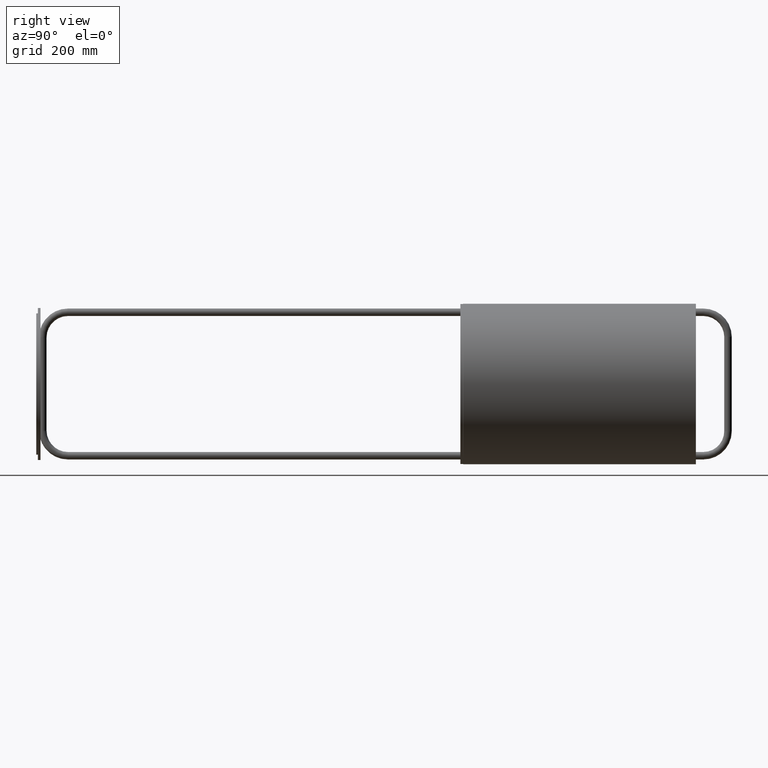
[diagram: clean part render]
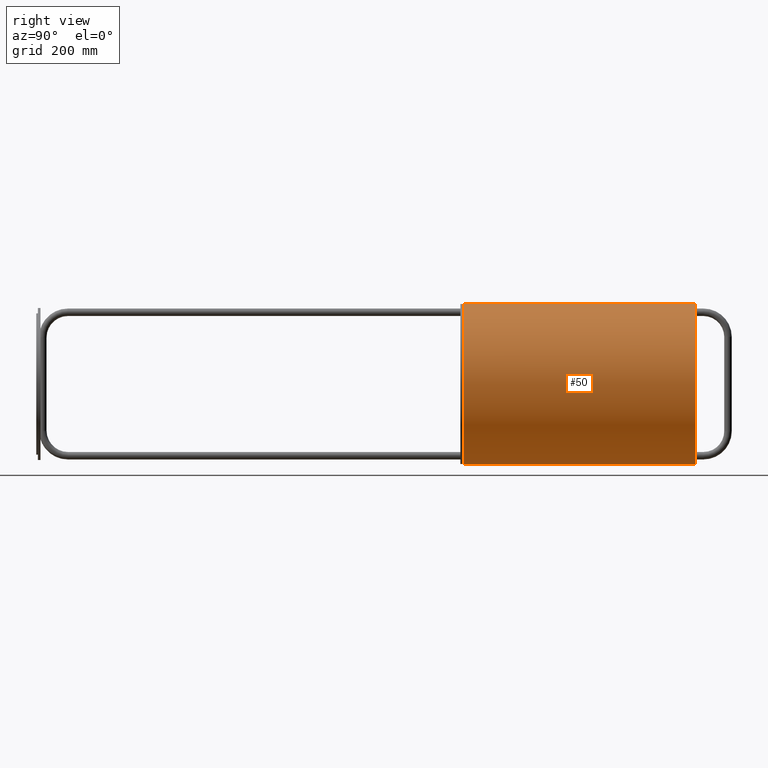
[diagram: same view with one face highlighted and labeled with its STEP entity id]
A machine part, right view. The second image highlights one B-rep face of the part: STEP entity #50.
In plain terms, the highlighted cylindrical surface (partial cylindrical patch) has radius 150 mm, axis along (-0, -1, -0).
Its self-contained STEP definition (entity closure, byte-faithful):
#50 = ADVANCED_FACE ( 'NONE', ( #2535 ), #2539, .T. ) ;
#205 = CARTESIAN_POINT ( 'NONE',  ( 1.836970198721030100E-014, 217.2000000000001000, 150.0000000000000600 ) ) ;
#215 = DIRECTION ( 'NONE',  ( 0.0000000000000000000, 0.0000000000000000000, -1.000000000000000000 ) ) ;
#508 = VERTEX_POINT ( 'NONE', #1199 ) ;
#734 = CARTESIAN_POINT ( 'NONE',  ( 1.836970198721030100E-014, -217.1999999999995300, 150.0000000000000600 ) ) ;
#769 = CARTESIAN_POINT ( 'NONE',  ( 0.0000000000000000000, 217.5000000000000000, 0.0000000000000000000 ) ) ;
#1021 = VERTEX_POINT ( 'NONE', #734 ) ;
#1055 = VERTEX_POINT ( 'NONE', #1226 ) ;
#1199 = CARTESIAN_POINT ( 'NONE',  ( 0.0000000000000000000, -217.1999999999995300, -150.0000000000000600 ) ) ;
#1226 = CARTESIAN_POINT ( 'NONE',  ( 0.0000000000000000000, 217.2000000000001000, -150.0000000000000600 ) ) ;
#1337 = DIRECTION ( 'NONE',  ( -0.0000000000000000000, -1.000000000000000000, -0.0000000000000000000 ) ) ;
#1366 = VERTEX_POINT ( 'NONE', #205 ) ;
#1487 = AXIS2_PLACEMENT_3D ( 'NONE', #7083, #7096, #7095 ) ;
#1634 = AXIS2_PLACEMENT_3D ( 'NONE', #4283, #4314, #3693 ) ;
#1972 = AXIS2_PLACEMENT_3D ( 'NONE', #769, #1337, #215 ) ;
#2396 = CIRCLE ( 'NONE', #1487, 150.0000000000000600 ) ;
#2535 = FACE_OUTER_BOUND ( 'NONE', #3049, .T. ) ;
#2539 = CYLINDRICAL_SURFACE ( 'NONE', #1972, 150.0000000000000600 ) ;
#3049 = EDGE_LOOP ( 'NONE', ( #6675, #6703, #6530, #6704 ) ) ;
#3693 = DIRECTION ( 'NONE',  ( 0.0000000000000000000, 0.0000000000000000000, 1.000000000000000000 ) ) ;
#4283 = CARTESIAN_POINT ( 'NONE',  ( 0.0000000000000000000, 217.2000000000001000, 0.0000000000000000000 ) ) ;
#4314 = DIRECTION ( 'NONE',  ( 0.0000000000000000000, -1.000000000000000000, 0.0000000000000000000 ) ) ;
#5048 = EDGE_CURVE ( 'NONE', #1055, #508, #5610, .T. ) ;
#5178 = EDGE_CURVE ( 'NONE', #1021, #508, #2396, .T. ) ;
#5331 = EDGE_CURVE ( 'NONE', #1366, #1021, #5799, .T. ) ;
#5366 = EDGE_CURVE ( 'NONE', #1055, #1366, #5836, .T. ) ;
#5483 = VECTOR ( 'NONE', #7032, 1000.000000000000000 ) ;
#5610 = LINE ( 'NONE', #7155, #5483 ) ;
#5756 = VECTOR ( 'NONE', #7117, 1000.000000000000000 ) ;
#5799 = LINE ( 'NONE', #8276, #5756 ) ;
#5836 = CIRCLE ( 'NONE', #1634, 150.0000000000000600 ) ;
#6530 = ORIENTED_EDGE ( 'NONE', *, *, #5178, .T. ) ;
#6675 = ORIENTED_EDGE ( 'NONE', *, *, #5366, .T. ) ;
#6703 = ORIENTED_EDGE ( 'NONE', *, *, #5331, .T. ) ;
#6704 = ORIENTED_EDGE ( 'NONE', *, *, #5048, .F. ) ;
#7032 = DIRECTION ( 'NONE',  ( -0.0000000000000000000, -1.000000000000000000, -0.0000000000000000000 ) ) ;
#7083 = CARTESIAN_POINT ( 'NONE',  ( 0.0000000000000000000, -217.1999999999995300, 0.0000000000000000000 ) ) ;
#7095 = DIRECTION ( 'NONE',  ( 0.0000000000000000000, 0.0000000000000000000, 1.000000000000000000 ) ) ;
#7096 = DIRECTION ( 'NONE',  ( -0.0000000000000000000, 1.000000000000000000, -0.0000000000000000000 ) ) ;
#7117 = DIRECTION ( 'NONE',  ( -0.0000000000000000000, -1.000000000000000000, -0.0000000000000000000 ) ) ;
#7155 = CARTESIAN_POINT ( 'NONE',  ( 0.0000000000000000000, 217.5000000000000000, -150.0000000000000600 ) ) ;
#8276 = CARTESIAN_POINT ( 'NONE',  ( 1.836970198721030100E-014, 217.5000000000000000, 150.0000000000000600 ) ) ;